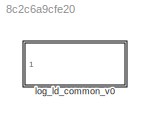
MODEL slx_8c2c6a9cfe20
KIND library
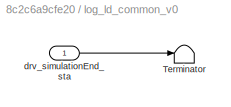
BLOCK [SubSystem] log_ld_common_v0
  Ports = [1]
  RequestExecContextInheritance = off
BLOCK [Terminator] log_ld_common_v0/Terminator
BLOCK [Inport] log_ld_common_v0/drv_simulationEnd_sta
  IconDisplay = Port number
LINE log_ld_common_v0/drv_simulationEnd_sta:1 -> log_ld_common_v0/Terminator:1
